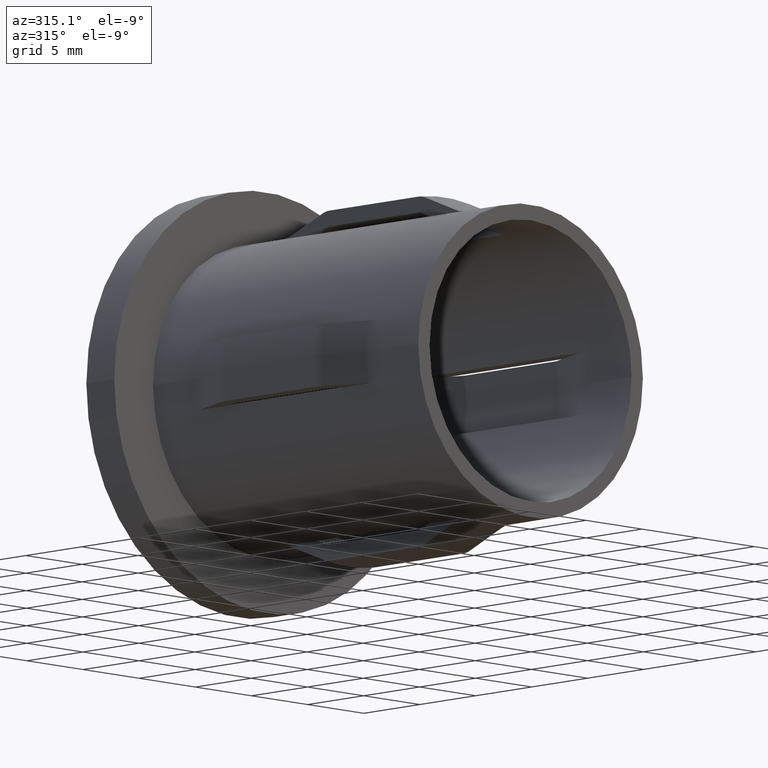
[diagram: clean part render]
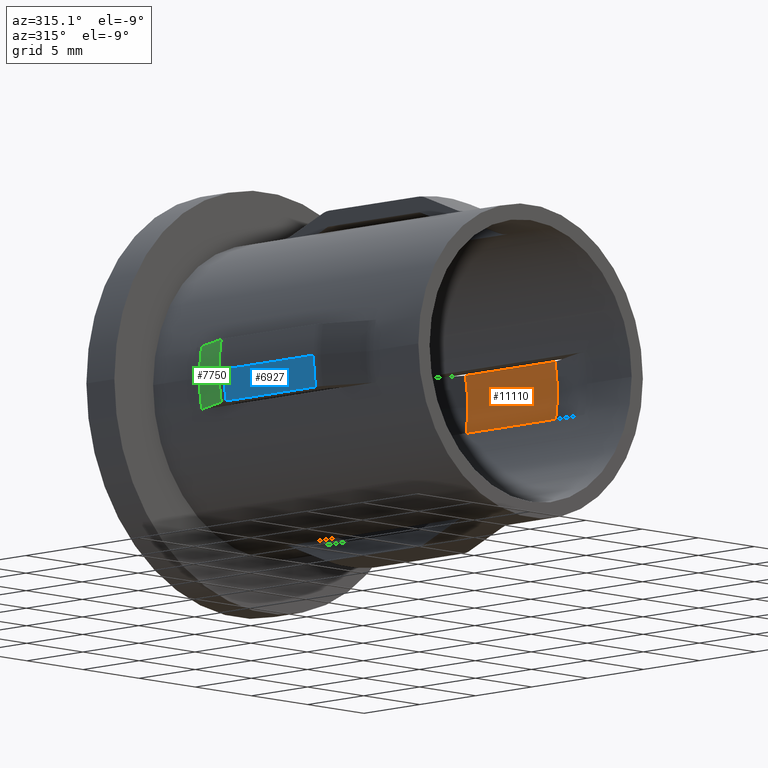
[diagram: same view with three faces highlighted in distinct colors, each labeled with its STEP entity id]
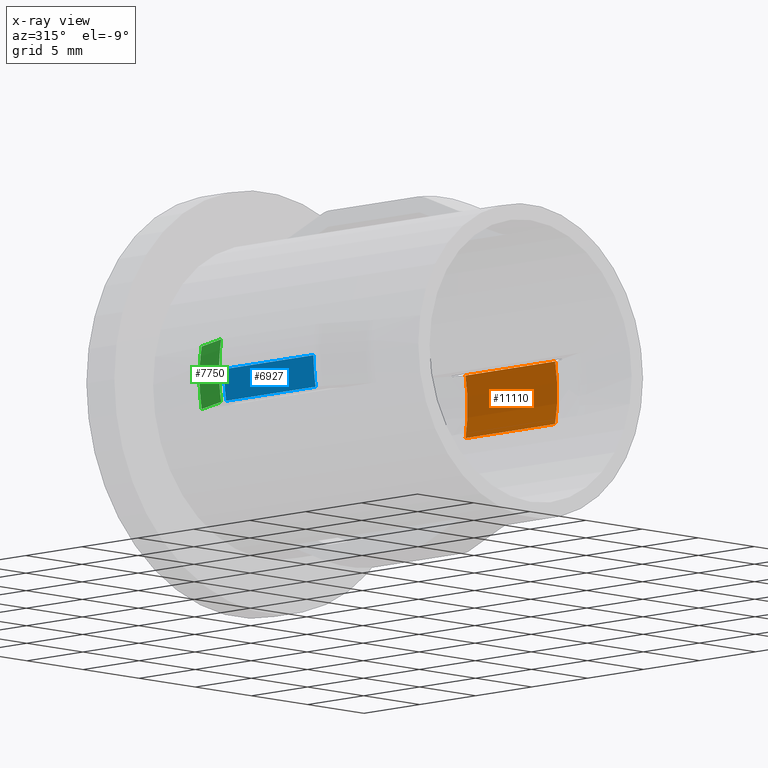
[diagram: x-ray of the same camera — body ghosted, the three highlighted faces saturated]
A machine part, auxiliary view with three faces highlighted in distinct colors.
The next image is the same camera in x-ray (body ghosted, the three faces saturated) — at least one of them is partly hidden behind the body in this view.
Their STEP definitions:

[orange] entity #11110 — the highlighted cylindrical surface (partial cylindrical patch) has radius 10.35 mm, axis along (0, 1, -0).
#340 = CARTESIAN_POINT ( 'NONE',  ( 10.15492491355795401, 16.00000000000000000, 2.000000000000000000 ) ) ;
#647 = VERTEX_POINT ( 'NONE', #1124 ) ;
#851 = VERTEX_POINT ( 'NONE', #1675 ) ;
#1124 = CARTESIAN_POINT ( 'NONE',  ( 10.15492491355795224, 7.999999999999996447, 2.000000000000000000 ) ) ;
#1408 = DIRECTION ( 'NONE',  ( 7.347880794884120229E-17, 1.000000000000000000, -0.000000000000000000 ) ) ;
#1475 = CARTESIAN_POINT ( 'NONE',  ( 10.15492491355795579, 26.19999999999999929, -1.999999999999999556 ) ) ;
#1601 = VERTEX_POINT ( 'NONE', #3562 ) ;
#1628 = CARTESIAN_POINT ( 'NONE',  ( -3.820898013339737983E-16, 16.00000000000000000, 0.000000000000000000 ) ) ;
#1675 = CARTESIAN_POINT ( 'NONE',  ( 10.15492491355795401, 16.00000000000000000, -1.999999999999999556 ) ) ;
#1801 = DIRECTION ( 'NONE',  ( 7.347880794884120229E-17, 1.000000000000000000, -0.000000000000000000 ) ) ;
#2244 = CARTESIAN_POINT ( 'NONE',  ( 10.15492491355795401, 26.19999999999999929, 2.000000000000000000 ) ) ;
#2359 = EDGE_CURVE ( 'NONE', #2865, #851, #6007, .T. ) ;
#2753 = FACE_OUTER_BOUND ( 'NONE', #8781, .T. ) ;
#2764 = DIRECTION ( 'NONE',  ( 7.347880794884120229E-17, 1.000000000000000000, -0.000000000000000000 ) ) ;
#2865 = VERTEX_POINT ( 'NONE', #340 ) ;
#3372 = DIRECTION ( 'NONE',  ( -1.000000000000000000, 0.000000000000000000, 0.000000000000000000 ) ) ;
#3483 = AXIS2_PLACEMENT_3D ( 'NONE', #8652, #3510, #3372 ) ;
#3510 = DIRECTION ( 'NONE',  ( 7.347880794884120229E-17, 1.000000000000000000, -0.000000000000000000 ) ) ;
#3562 = CARTESIAN_POINT ( 'NONE',  ( 10.15492491355795401, 7.999999999999996447, -1.999999999999999556 ) ) ;
#4558 = DIRECTION ( 'NONE',  ( -1.000000000000000000, 0.000000000000000000, 0.000000000000000000 ) ) ;
#4664 = LINE ( 'NONE', #1475, #6796 ) ;
#4796 = EDGE_CURVE ( 'NONE', #1601, #851, #4664, .T. ) ;
#4953 = CIRCLE ( 'NONE', #10947, 10.35000000000000320 ) ;
#5544 = DIRECTION ( 'NONE',  ( 7.347880794884120229E-17, 1.000000000000000000, -0.000000000000000000 ) ) ;
#6007 = CIRCLE ( 'NONE', #10858, 10.35000000000000142 ) ;
#6796 = VECTOR ( 'NONE', #2764, 1000.000000000000000 ) ;
#6860 = ORIENTED_EDGE ( 'NONE', *, *, #2359, .T. ) ;
#6972 = DIRECTION ( 'NONE',  ( -1.000000000000000000, 0.000000000000000000, 0.000000000000000000 ) ) ;
#7204 = EDGE_CURVE ( 'NONE', #647, #1601, #4953, .T. ) ;
#7530 = LINE ( 'NONE', #2244, #11715 ) ;
#7787 = CARTESIAN_POINT ( 'NONE',  ( -9.699202649247035646E-16, 7.999999999999996447, 0.000000000000000000 ) ) ;
#8652 = CARTESIAN_POINT ( 'NONE',  ( 3.673940397442062826E-16, 26.19999999999999929, 0.000000000000000000 ) ) ;
#8781 = EDGE_LOOP ( 'NONE', ( #9989, #12933, #6860, #11324 ) ) ;
#8886 = CYLINDRICAL_SURFACE ( 'NONE', #3483, 10.35000000000000142 ) ;
#9989 = ORIENTED_EDGE ( 'NONE', *, *, #7204, .F. ) ;
#10858 = AXIS2_PLACEMENT_3D ( 'NONE', #1628, #1801, #6972 ) ;
#10947 = AXIS2_PLACEMENT_3D ( 'NONE', #7787, #1408, #4558 ) ;
#11110 = ADVANCED_FACE ( 'NONE', ( #2753 ), #8886, .F. ) ;
#11324 = ORIENTED_EDGE ( 'NONE', *, *, #4796, .F. ) ;
#11715 = VECTOR ( 'NONE', #5544, 1000.000000000000000 ) ;
#12362 = EDGE_CURVE ( 'NONE', #647, #2865, #7530, .T. ) ;
#12933 = ORIENTED_EDGE ( 'NONE', *, *, #12362, .T. ) ;

[blue] entity #6927 — the highlighted cylindrical surface (partial cylindrical patch) has radius 11.35 mm, axis along (0, 1, -0).
#40 = ORIENTED_EDGE ( 'NONE', *, *, #212, .T. ) ;
#212 = EDGE_CURVE ( 'NONE', #9496, #5888, #13230, .T. ) ;
#433 = CYLINDRICAL_SURFACE ( 'NONE', #10235, 11.35000000000000320 ) ;
#531 = DIRECTION ( 'NONE',  ( 7.347880794884120229E-17, 1.000000000000000000, -0.000000000000000000 ) ) ;
#1271 = DIRECTION ( 'NONE',  ( 7.347880794884120229E-17, 1.000000000000000000, -0.000000000000000000 ) ) ;
#1948 = ORIENTED_EDGE ( 'NONE', *, *, #3306, .F. ) ;
#2011 = EDGE_CURVE ( 'NONE', #5888, #7901, #2185, .T. ) ;
#2185 = CIRCLE ( 'NONE', #13345, 11.35000000000000497 ) ;
#2235 = CARTESIAN_POINT ( 'NONE',  ( -11.35000000000000142, 16.00000000000000000, 0.000000000000000000 ) ) ;
#2605 = VECTOR ( 'NONE', #531, 1000.000000000000000 ) ;
#3115 = LINE ( 'NONE', #13263, #2605 ) ;
#3306 = EDGE_CURVE ( 'NONE', #9496, #10108, #9323, .T. ) ;
#3353 = DIRECTION ( 'NONE',  ( -1.000000000000000000, 0.000000000000000000, 0.000000000000000000 ) ) ;
#4426 = VECTOR ( 'NONE', #10822, 1000.000000000000000 ) ;
#4666 = DIRECTION ( 'NONE',  ( 7.347880794884120229E-17, 1.000000000000000000, -0.000000000000000000 ) ) ;
#5888 = VERTEX_POINT ( 'NONE', #10864 ) ;
#6927 = ADVANCED_FACE ( 'NONE', ( #6937 ), #433, .T. ) ;
#6937 = FACE_OUTER_BOUND ( 'NONE', #13716, .T. ) ;
#7213 = DIRECTION ( 'NONE',  ( 7.347880794884120229E-17, 1.000000000000000000, -0.000000000000000000 ) ) ;
#7540 = CARTESIAN_POINT ( 'NONE',  ( -11.17239902617159686, 16.00000000000000000, -2.000000000000000000 ) ) ;
#7757 = CARTESIAN_POINT ( 'NONE',  ( 3.673940397442062826E-16, 26.19999999999999929, 0.000000000000000000 ) ) ;
#7901 = VERTEX_POINT ( 'NONE', #11075 ) ;
#7936 = EDGE_CURVE ( 'NONE', #7901, #10108, #3115, .T. ) ;
#8183 = AXIS2_PLACEMENT_3D ( 'NONE', #12544, #7213, #11501 ) ;
#9323 = CIRCLE ( 'NONE', #8183, 11.35000000000000142 ) ;
#9496 = VERTEX_POINT ( 'NONE', #7540 ) ;
#10032 = DIRECTION ( 'NONE',  ( -1.000000000000000000, 0.000000000000000000, 0.000000000000000000 ) ) ;
#10108 = VERTEX_POINT ( 'NONE', #2235 ) ;
#10235 = AXIS2_PLACEMENT_3D ( 'NONE', #7757, #4666, #10032 ) ;
#10822 = DIRECTION ( 'NONE',  ( -0.000000000000000000, -1.000000000000000000, -0.000000000000000000 ) ) ;
#10864 = CARTESIAN_POINT ( 'NONE',  ( -11.17239902617159686, 7.999999999999996447, -2.000000000000000000 ) ) ;
#11075 = CARTESIAN_POINT ( 'NONE',  ( -11.35000000000000497, 7.999999999999996447, 0.000000000000000000 ) ) ;
#11254 = ORIENTED_EDGE ( 'NONE', *, *, #7936, .T. ) ;
#11501 = DIRECTION ( 'NONE',  ( -1.000000000000000000, 0.000000000000000000, 0.000000000000000000 ) ) ;
#11855 = CARTESIAN_POINT ( 'NONE',  ( -9.699202649247035646E-16, 7.999999999999996447, 0.000000000000000000 ) ) ;
#12544 = CARTESIAN_POINT ( 'NONE',  ( -3.820898013339737983E-16, 16.00000000000000000, 0.000000000000000000 ) ) ;
#12826 = ORIENTED_EDGE ( 'NONE', *, *, #2011, .T. ) ;
#13230 = LINE ( 'NONE', #13751, #4426 ) ;
#13263 = CARTESIAN_POINT ( 'NONE',  ( -11.35000000000000320, 26.19999999999999929, 0.000000000000000000 ) ) ;
#13345 = AXIS2_PLACEMENT_3D ( 'NONE', #11855, #1271, #3353 ) ;
#13716 = EDGE_LOOP ( 'NONE', ( #12826, #11254, #1948, #40 ) ) ;
#13751 = CARTESIAN_POINT ( 'NONE',  ( -11.17239902617159686, 20.00000000000000000, -2.000000000000000000 ) ) ;

[green] entity #7750 — the highlighted conical surface has half-angle 21.478 deg.
#278 = CIRCLE ( 'NONE', #760, 10.10416321574562026 ) ;
#469 = CARTESIAN_POINT ( 'NONE',  ( -9.904247285403716461, 19.45078267350492851, -2.000000000000000000 ) ) ;
#506 = CIRCLE ( 'NONE', #12616, 10.10416321574562026 ) ;
#760 = AXIS2_PLACEMENT_3D ( 'NONE', #13215, #9663, #7851 ) ;
#1482 = CARTESIAN_POINT ( 'NONE',  ( -3.417339668782665833E-16, 16.54921732649506794, 0.000000000000000000 ) ) ;
#1487 = VERTEX_POINT ( 'NONE', #7259 ) ;
#1802 = CARTESIAN_POINT ( 'NONE',  ( -11.06656428066493270, 16.54921732649506794, -2.000000000000000000 ) ) ;
#1927 = CARTESIAN_POINT ( 'NONE',  ( -1.285304039943162535E-16, 19.45078267350492851, 0.000000000000000000 ) ) ;
#2724 = EDGE_CURVE ( 'NONE', #8381, #11866, #4842, .T. ) ;
#3210 = ORIENTED_EDGE ( 'NONE', *, *, #3553, .T. ) ;
#3553 = EDGE_CURVE ( 'NONE', #8171, #4454, #11612, .T. ) ;
#3938 = CARTESIAN_POINT ( 'NONE',  ( -3.417339668782665833E-16, 16.54921732649506794, 0.000000000000000000 ) ) ;
#4454 = VERTEX_POINT ( 'NONE', #10420 ) ;
#4842 = B_SPLINE_CURVE_WITH_KNOTS ( 'NONE', 3,
 ( #1802, #11409, #11448, #10501 ),
 .UNSPECIFIED., .F., .F.,
 ( 4, 4 ),
 ( 0.005973082238629241585, 0.009098792610961638563 ),
 .UNSPECIFIED. ) ;
#5239 = ORIENTED_EDGE ( 'NONE', *, *, #5589, .F. ) ;
#5418 = CARTESIAN_POINT ( 'NONE',  ( -3.417339668782665833E-16, 16.54921732649506794, 0.000000000000000000 ) ) ;
#5589 = EDGE_CURVE ( 'NONE', #11866, #7186, #278, .T. ) ;
#5898 = ORIENTED_EDGE ( 'NONE', *, *, #10670, .T. ) ;
#5921 = DIRECTION ( 'NONE',  ( -7.347880794884120229E-17, -1.000000000000000000, 0.000000000000000000 ) ) ;
#5988 = ORIENTED_EDGE ( 'NONE', *, *, #8699, .T. ) ;
#6850 = AXIS2_PLACEMENT_3D ( 'NONE', #1482, #11986, #8838 ) ;
#6898 = CIRCLE ( 'NONE', #12821, 11.24583678425438293 ) ;
#6970 = DIRECTION ( 'NONE',  ( 1.000000000000000000, 0.000000000000000000, 0.000000000000000000 ) ) ;
#7186 = VERTEX_POINT ( 'NONE', #9706 ) ;
#7256 = CONICAL_SURFACE ( 'NONE', #12397, 11.24583678425438293, 0.3748628261527554018 ) ;
#7259 = CARTESIAN_POINT ( 'NONE',  ( -11.24583678425438293, 16.54921732649506794, 0.000000000000000000 ) ) ;
#7524 = DIRECTION ( 'NONE',  ( -1.000000000000000000, 0.000000000000000000, 0.000000000000000000 ) ) ;
#7750 = ADVANCED_FACE ( 'NONE', ( #12937 ), #7256, .T. ) ;
#7851 = DIRECTION ( 'NONE',  ( -1.000000000000000000, 0.000000000000000000, 0.000000000000000000 ) ) ;
#7866 = CARTESIAN_POINT ( 'NONE',  ( -11.06656428066493270, 16.54921732649506794, 2.000000000000000000 ) ) ;
#7922 = CARTESIAN_POINT ( 'NONE',  ( -10.29237549371326388, 18.48387114366480688, 2.000000000000000000 ) ) ;
#8171 = VERTEX_POINT ( 'NONE', #10483 ) ;
#8381 = VERTEX_POINT ( 'NONE', #10157 ) ;
#8691 = DIRECTION ( 'NONE',  ( 7.347880794884120229E-17, 1.000000000000000000, -0.000000000000000000 ) ) ;
#8699 = EDGE_CURVE ( 'NONE', #8381, #1487, #10076, .T. ) ;
#8832 = CARTESIAN_POINT ( 'NONE',  ( -9.904247285403716461, 19.45078267350492851, 2.000000000000000000 ) ) ;
#8838 = DIRECTION ( 'NONE',  ( -1.000000000000000000, 0.000000000000000000, 0.000000000000000000 ) ) ;
#9663 = DIRECTION ( 'NONE',  ( 7.347880794884120229E-17, 1.000000000000000000, -0.000000000000000000 ) ) ;
#9706 = CARTESIAN_POINT ( 'NONE',  ( -10.10416321574562026, 19.45078267350492851, 0.000000000000000000 ) ) ;
#10000 = CARTESIAN_POINT ( 'NONE',  ( -10.67974257665458460, 17.51665340152830197, 2.000000000000000000 ) ) ;
#10076 = CIRCLE ( 'NONE', #6850, 11.24583678425438293 ) ;
#10157 = CARTESIAN_POINT ( 'NONE',  ( -11.06656428066493270, 16.54921732649506794, -2.000000000000000000 ) ) ;
#10291 = DIRECTION ( 'NONE',  ( 7.347880794884120229E-17, 1.000000000000000000, -0.000000000000000000 ) ) ;
#10420 = CARTESIAN_POINT ( 'NONE',  ( -9.904247285403716461, 19.45078267350492851, 2.000000000000000000 ) ) ;
#10483 = CARTESIAN_POINT ( 'NONE',  ( -11.06656428066493270, 16.54921732649506794, 2.000000000000000000 ) ) ;
#10501 = CARTESIAN_POINT ( 'NONE',  ( -9.904247285403716461, 19.45078267350492851, -2.000000000000000000 ) ) ;
#10670 = EDGE_CURVE ( 'NONE', #1487, #8171, #6898, .T. ) ;
#11409 = CARTESIAN_POINT ( 'NONE',  ( -10.67974257665458460, 17.51665340152830197, -2.000000000000000000 ) ) ;
#11448 = CARTESIAN_POINT ( 'NONE',  ( -10.29237549371326388, 18.48387114366480688, -2.000000000000000000 ) ) ;
#11612 = B_SPLINE_CURVE_WITH_KNOTS ( 'NONE', 3,
 ( #7866, #10000, #7922, #8832 ),
 .UNSPECIFIED., .F., .F.,
 ( 4, 4 ),
 ( 0.005973082238629241585, 0.009098792610961638563 ),
 .UNSPECIFIED. ) ;
#11843 = EDGE_LOOP ( 'NONE', ( #5988, #5898, #3210, #12868, #5239, #13054 ) ) ;
#11866 = VERTEX_POINT ( 'NONE', #469 ) ;
#11986 = DIRECTION ( 'NONE',  ( 7.347880794884120229E-17, 1.000000000000000000, -0.000000000000000000 ) ) ;
#12397 = AXIS2_PLACEMENT_3D ( 'NONE', #3938, #5921, #6970 ) ;
#12616 = AXIS2_PLACEMENT_3D ( 'NONE', #1927, #10291, #13591 ) ;
#12821 = AXIS2_PLACEMENT_3D ( 'NONE', #5418, #8691, #7524 ) ;
#12868 = ORIENTED_EDGE ( 'NONE', *, *, #13578, .F. ) ;
#12937 = FACE_OUTER_BOUND ( 'NONE', #11843, .T. ) ;
#13054 = ORIENTED_EDGE ( 'NONE', *, *, #2724, .F. ) ;
#13215 = CARTESIAN_POINT ( 'NONE',  ( -1.285304039943162535E-16, 19.45078267350492851, 0.000000000000000000 ) ) ;
#13578 = EDGE_CURVE ( 'NONE', #7186, #4454, #506, .T. ) ;
#13591 = DIRECTION ( 'NONE',  ( -1.000000000000000000, 0.000000000000000000, 0.000000000000000000 ) ) ;